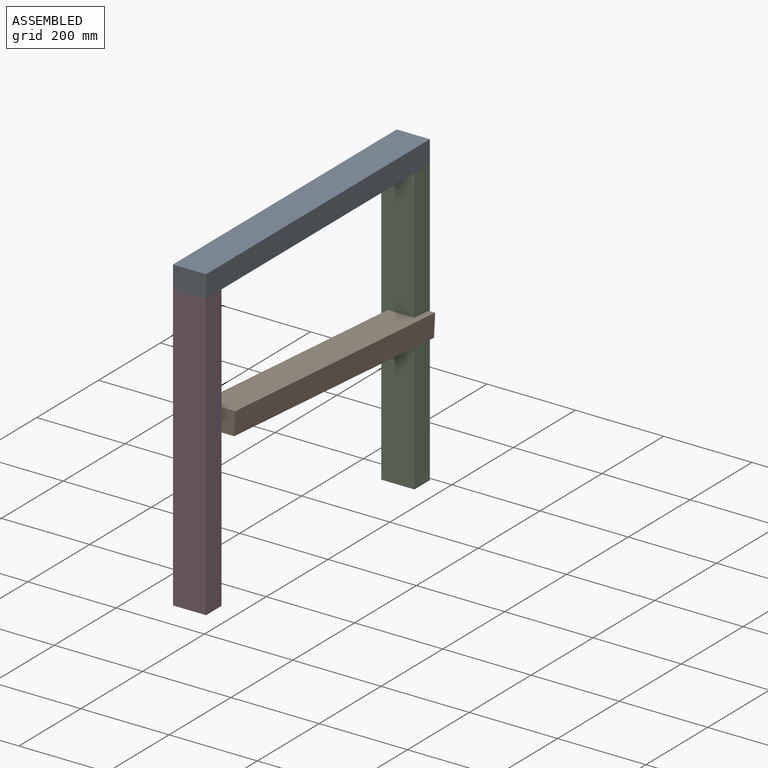
[diagram: assembled view]
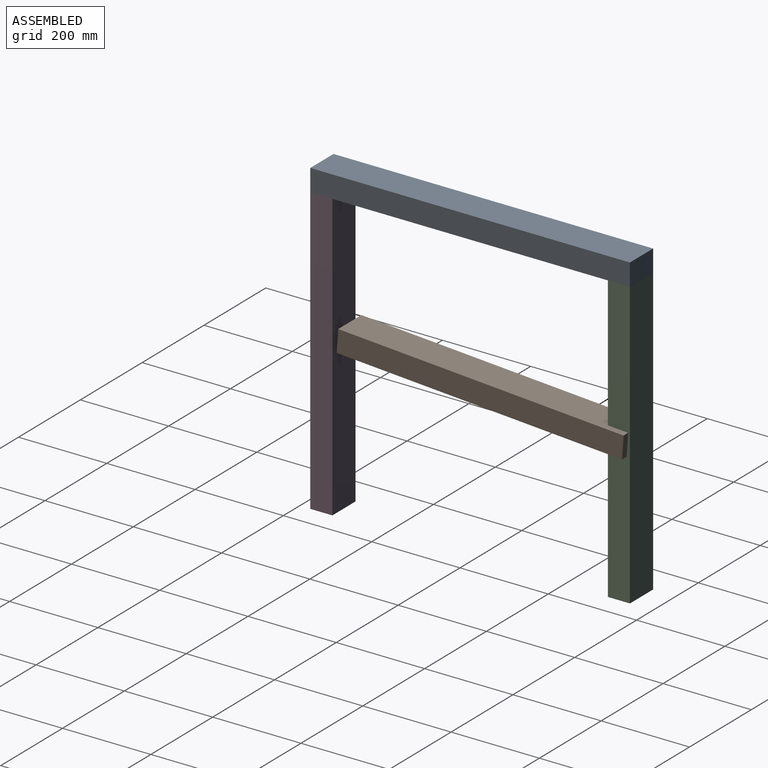
[diagram: assembled view, second angle]
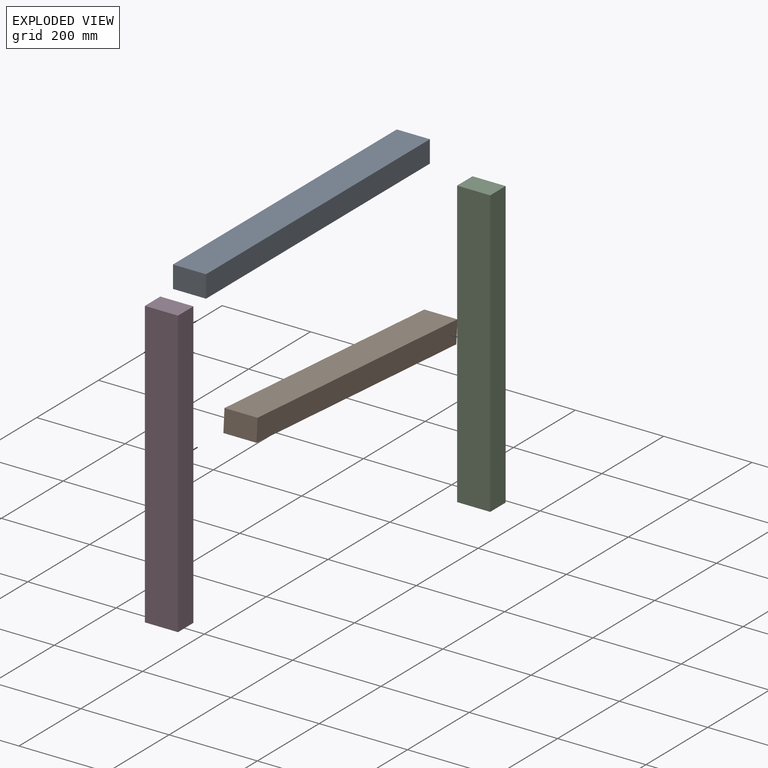
[diagram: exploded view]
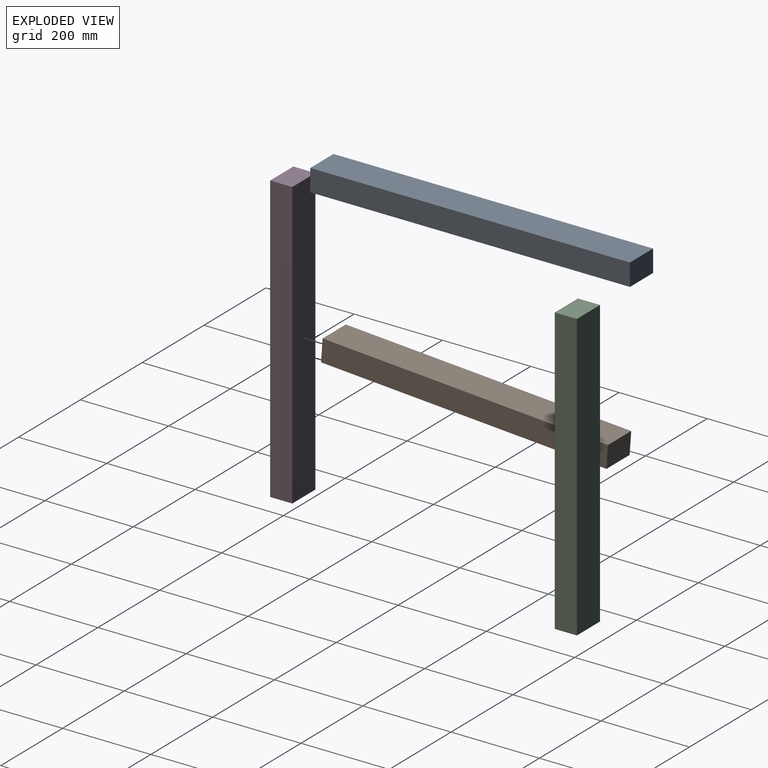
[diagram: exploded view, second angle]
ASSEMBLY  parts=4 mates=2
PART A: 6 faces, bbox 75x50x724 mm
  f0: plane 724x75mm, normal (0,1,0), area 54300mm2, adj f1,f3,f4,f5
  f1: plane 724x50mm, normal (-1,0,0), area 36200mm2, adj f0,f2,f4,f5
  f2: plane 724x75mm, normal (0,-1,0), area 54300mm2, adj f1,f3,f4,f5
  f3: plane 724x50mm, normal (1,0,0), area 36200mm2, adj f0,f2,f4,f5
  f4: plane 75x50mm, normal (0,0,1), area 3750mm2, adj f0,f1,f2,f3
  f5: plane 75x50mm, normal (0,0,-1), area 3750mm2, adj f0,f1,f2,f3
PART B: 6 faces, bbox 75x50x648 mm
  f0: plane 648x75mm, normal (0,1,0), area 48600mm2, adj f1,f3,f4,f5
  f1: plane 648x50mm, normal (-1,0,0), area 32400mm2, adj f0,f2,f4,f5
  f2: plane 648x75mm, normal (0,-1,0), area 48600mm2, adj f1,f3,f4,f5
  f3: plane 648x50mm, normal (1,0,0), area 32400mm2, adj f0,f2,f4,f5
  f4: plane 75x50mm, normal (0,0,1), area 3750mm2, adj f0,f1,f2,f3
  f5: plane 75x50mm, normal (0,0,-1), area 3750mm2, adj f0,f1,f2,f3
PART C: same geometry as B
PART D: same geometry as B
PLACE A rot(axis=(0,0.71,0.71),180deg) t=(-26.15,442.77,610.54)mm
PLACE B rot(axis=(-1,0,0),94deg) t=(-86.43,516.32,356.04)mm
PLACE C t=(-101.15,1116.77,-37.46)mm
PLACE D t=(-101.15,442.77,-37.46)mm fixed
MATE fastened A.f3 <-> C.f1  axis (-1,0,0) through (-101.15,1166.77,610.54)mm
MATE fastened A.f5 <-> D.f2  axis (0,-1,0) through (-101.15,442.77,610.54)mm
